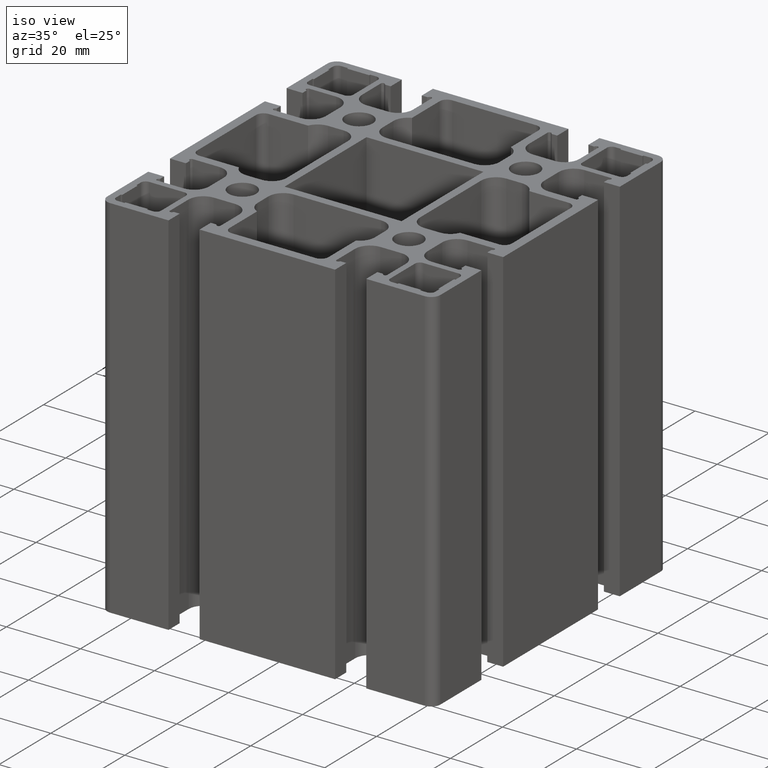
[diagram: clean part render]
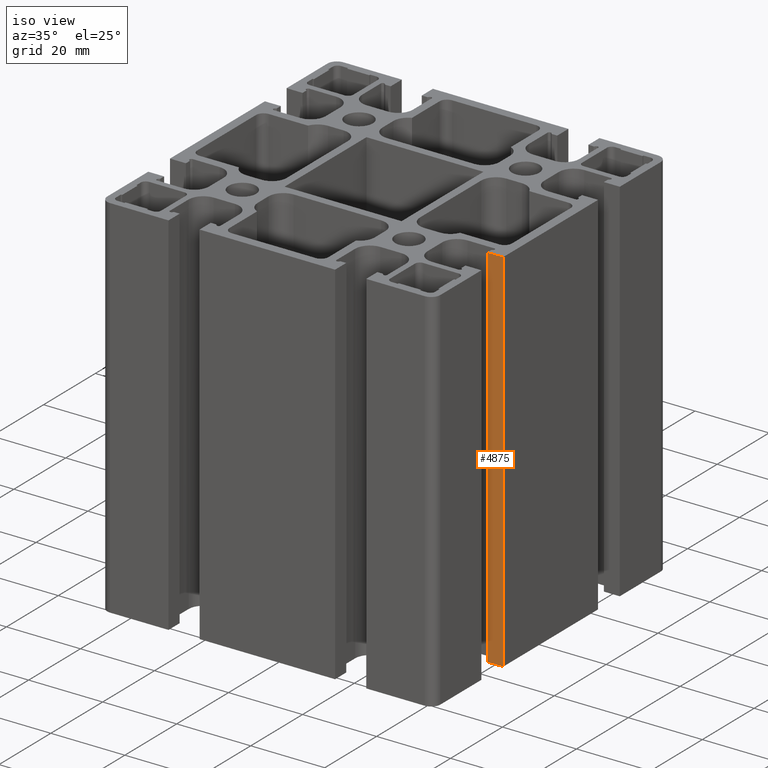
[diagram: same view with one face highlighted and labeled with its STEP entity id]
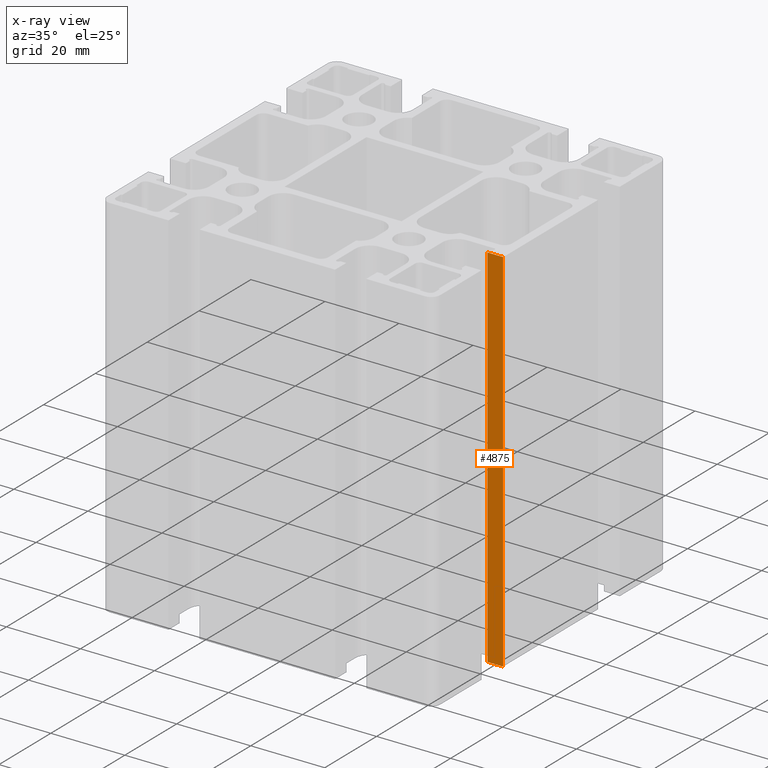
[diagram: x-ray of the same camera — body ghosted, the highlighted face saturated]
A machine part, iso view. The second image highlights one B-rep face of the part: STEP entity #4875.
The next image is the same camera in x-ray: the body ghosted, the highlighted face saturated — about 0% of this face is hidden behind the body in this view.
In plain terms, the highlighted planar face has unit normal (-0, 1, 0).
Its self-contained STEP definition (entity closure, byte-faithful):
#130=PLANE('',#5244);
#340=FACE_OUTER_BOUND('',#587,.T.);
#587=EDGE_LOOP('',(#3763,#3764,#3765,#3766));
#1033=LINE('',#7714,#1566);
#1034=LINE('',#7718,#1567);
#1035=LINE('',#7719,#1568);
#1036=LINE('',#7720,#1569);
#1566=VECTOR('',#6270,100.);
#1567=VECTOR('',#6273,100.);
#1568=VECTOR('',#6274,4.29800468689921);
#1569=VECTOR('',#6275,4.29800468689921);
#2274=VERTEX_POINT('',#7710);
#2275=VERTEX_POINT('',#7712);
#2276=VERTEX_POINT('',#7716);
#2277=VERTEX_POINT('',#7717);
#2899=EDGE_CURVE('',#2275,#2274,#1033,.T.);
#2900=EDGE_CURVE('',#2276,#2277,#1034,.T.);
#2901=EDGE_CURVE('',#2274,#2276,#1035,.T.);
#2902=EDGE_CURVE('',#2277,#2275,#1036,.T.);
#3763=ORIENTED_EDGE('',*,*,#2900,.F.);
#3764=ORIENTED_EDGE('',*,*,#2901,.F.);
#3765=ORIENTED_EDGE('',*,*,#2899,.F.);
#3766=ORIENTED_EDGE('',*,*,#2902,.F.);
#4875=ADVANCED_FACE('',(#340),#130,.F.);
#5244=AXIS2_PLACEMENT_3D('',#7715,#6271,#6272);
#6270=DIRECTION('',(0.,0.,1.));
#6271=DIRECTION('center_axis',(-2.52455356796688E-5,0.999999999681331,0.));
#6272=DIRECTION('ref_axis',(-0.999999999681332,-2.52455356797299E-5,0.));
#6273=DIRECTION('',(0.,0.,-1.));
#6274=DIRECTION('',(0.999999999681331,2.52455356796688E-5,0.));
#6275=DIRECTION('',(-0.999999999681331,-2.52455356796688E-5,0.));
#7710=CARTESIAN_POINT('',(40.7019953144704,-18.3002877867635,100.));
#7712=CARTESIAN_POINT('',(40.7019953144704,-18.3002877867635,0.));
#7714=CARTESIAN_POINT('',(40.7019953144704,-18.3002877867635,0.));
#7715=CARTESIAN_POINT('Origin',(45.0024521192793,-18.3001792194278,0.));
#7716=CARTESIAN_POINT('',(45.,-18.3001792813328,100.));
#7717=CARTESIAN_POINT('',(45.,-18.3001792813328,0.));
#7718=CARTESIAN_POINT('',(45.,-18.3001792813328,0.));
#7719=CARTESIAN_POINT('',(22.5014570728942,-18.3007472691012,100.));
#7720=CARTESIAN_POINT('',(22.5014570728942,-18.3007472691012,0.));